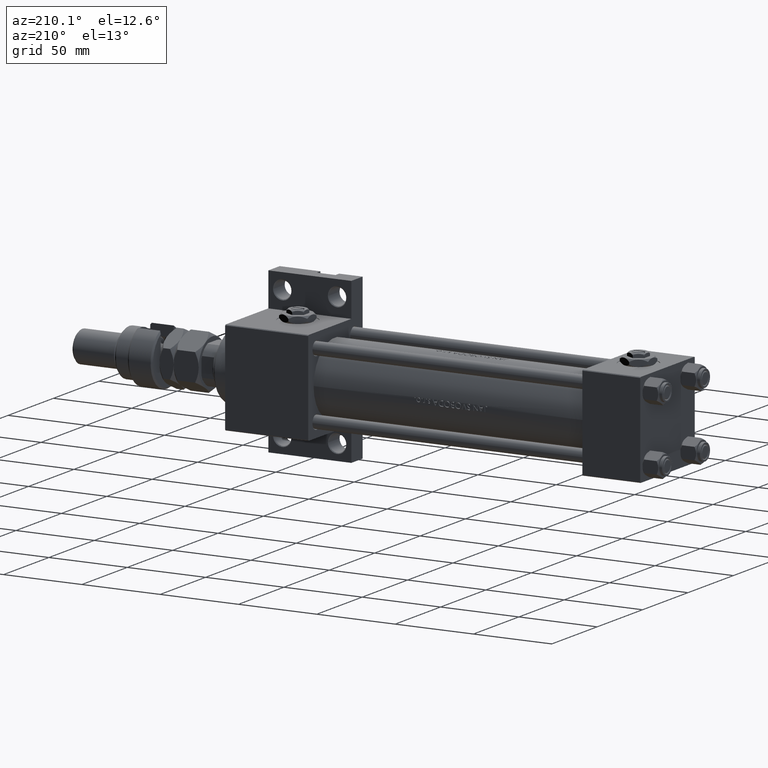
[diagram: clean part render]
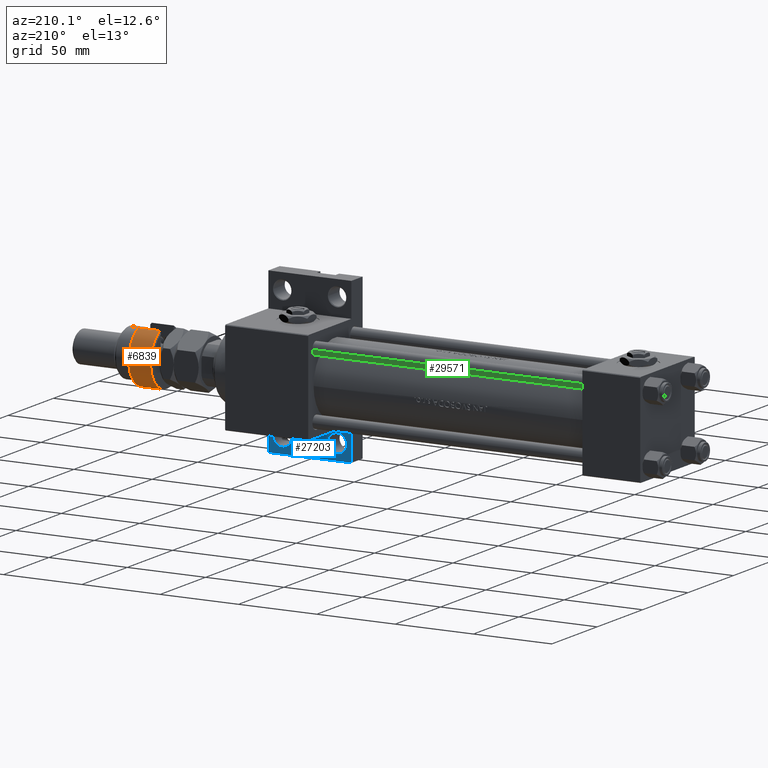
[diagram: same view with three faces highlighted in distinct colors, each labeled with its STEP entity id]
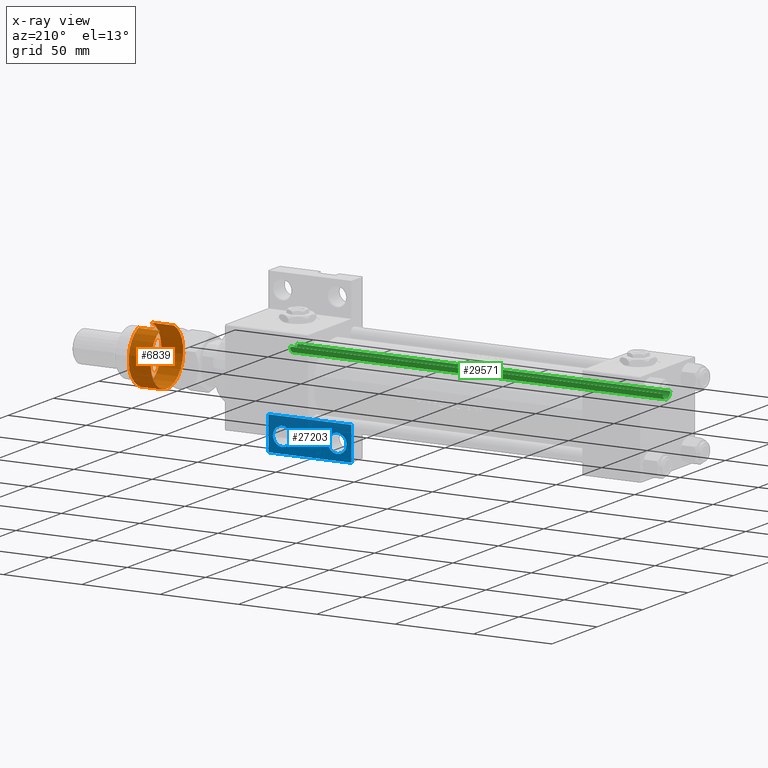
[diagram: x-ray of the same camera — body ghosted, the three highlighted faces saturated]
A machine part, auxiliary view with three faces highlighted in distinct colors.
The next image is the same camera in x-ray (body ghosted, the three faces saturated) — at least one of them is partly hidden behind the body in this view.
Their STEP definitions:

[orange] entity #6839 — the highlighted cylindrical surface (edge-blend (fillet) strip) has radius 18 mm, axis along (-1, -0, 0).
#1157 = CIRCLE ( 'NONE', #21053, 18.00000000000000000 ) ;
#3051 = DIRECTION ( 'NONE',  ( 0.000000000000000000, 0.000000000000000000, -1.000000000000000000 ) ) ;
#3459 = LINE ( 'NONE', #40029, #23033 ) ;
#5266 = CARTESIAN_POINT ( 'NONE',  ( -16.36306817195357155, -7.500000000000000000, 14.99999999999999645 ) ) ;
#5891 = ORIENTED_EDGE ( 'NONE', *, *, #37635, .T. ) ;
#6839 = ADVANCED_FACE ( 'NONE', ( #8698 ), #42278, .T. ) ;
#7726 = VERTEX_POINT ( 'NONE', #5266 ) ;
#8698 = FACE_OUTER_BOUND ( 'NONE', #39046, .T. ) ;
#9233 = DIRECTION ( 'NONE',  ( -0.000000000000000000, -0.000000000000000000, 1.000000000000000000 ) ) ;
#10088 = EDGE_CURVE ( 'NONE', #27938, #14609, #1157, .T. ) ;
#11339 = CARTESIAN_POINT ( 'NONE',  ( -16.36306817195357155, -7.500000000000000000, 1.000000000000011324 ) ) ;
#11461 = DIRECTION ( 'NONE',  ( 1.000000000000000000, 0.000000000000000000, 0.000000000000000000 ) ) ;
#13303 = CARTESIAN_POINT ( 'NONE',  ( 0.000000000000000000, 0.000000000000000000, 1.000000000000011324 ) ) ;
#14609 = VERTEX_POINT ( 'NONE', #16078 ) ;
#16078 = CARTESIAN_POINT ( 'NONE',  ( -16.36306817195357155, 7.500000000000000000, 1.000000000000011324 ) ) ;
#16765 = ORIENTED_EDGE ( 'NONE', *, *, #52792, .T. ) ;
#16827 = CARTESIAN_POINT ( 'NONE',  ( 0.000000000000000000, 0.000000000000000000, 16.00000000000000000 ) ) ;
#18905 = DIRECTION ( 'NONE',  ( -0.000000000000000000, -0.000000000000000000, 1.000000000000000000 ) ) ;
#19685 = VERTEX_POINT ( 'NONE', #11339 ) ;
#19758 = CARTESIAN_POINT ( 'NONE',  ( -16.36306817195357155, -7.500000000000000000, 17.50000000000000000 ) ) ;
#21053 = AXIS2_PLACEMENT_3D ( 'NONE', #13303, #9233, #42287 ) ;
#22360 = ORIENTED_EDGE ( 'NONE', *, *, #35872, .T. ) ;
#23033 = VECTOR ( 'NONE', #40837, 1000.000000000000000 ) ;
#26037 = DIRECTION ( 'NONE',  ( -0.000000000000000000, -0.000000000000000000, -1.000000000000000000 ) ) ;
#27938 = VERTEX_POINT ( 'NONE', #42233 ) ;
#30999 = CIRCLE ( 'NONE', #38816, 18.00000000000000000 ) ;
#31087 = CIRCLE ( 'NONE', #48411, 18.00000000000000000 ) ;
#33985 = AXIS2_PLACEMENT_3D ( 'NONE', #16827, #26037, #42546 ) ;
#34457 = VECTOR ( 'NONE', #49294, 1000.000000000000000 ) ;
#35872 = EDGE_CURVE ( 'NONE', #7726, #19685, #40333, .T. ) ;
#36261 = CARTESIAN_POINT ( 'NONE',  ( -16.36306817195357155, 7.500000000000000000, 14.99999999999999645 ) ) ;
#37635 = EDGE_CURVE ( 'NONE', #19685, #27938, #31087, .T. ) ;
#38816 = AXIS2_PLACEMENT_3D ( 'NONE', #44516, #3051, #11461 ) ;
#39046 = EDGE_LOOP ( 'NONE', ( #48858, #16765, #22360, #5891, #53205 ) ) ;
#39222 = CARTESIAN_POINT ( 'NONE',  ( 0.000000000000000000, 0.000000000000000000, 1.000000000000011324 ) ) ;
#40029 = CARTESIAN_POINT ( 'NONE',  ( -16.36306817195357155, 7.500000000000000000, 17.50000000000000000 ) ) ;
#40333 = LINE ( 'NONE', #19758, #34457 ) ;
#40837 = DIRECTION ( 'NONE',  ( -0.000000000000000000, -0.000000000000000000, -1.000000000000000000 ) ) ;
#42233 = CARTESIAN_POINT ( 'NONE',  ( 18.00000000000000000, 0.000000000000000000, 1.000000000000011324 ) ) ;
#42278 = CYLINDRICAL_SURFACE ( 'NONE', #33985, 18.00000000000000000 ) ;
#42287 = DIRECTION ( 'NONE',  ( 1.000000000000000000, 0.000000000000000000, 0.000000000000000000 ) ) ;
#42546 = DIRECTION ( 'NONE',  ( -1.000000000000000000, 0.000000000000000000, 0.000000000000000000 ) ) ;
#44315 = VERTEX_POINT ( 'NONE', #36261 ) ;
#44516 = CARTESIAN_POINT ( 'NONE',  ( 0.000000000000000000, 0.000000000000000000, 14.99999999999999645 ) ) ;
#47698 = EDGE_CURVE ( 'NONE', #44315, #14609, #3459, .T. ) ;
#48411 = AXIS2_PLACEMENT_3D ( 'NONE', #39222, #18905, #51976 ) ;
#48858 = ORIENTED_EDGE ( 'NONE', *, *, #47698, .F. ) ;
#49294 = DIRECTION ( 'NONE',  ( -0.000000000000000000, -0.000000000000000000, -1.000000000000000000 ) ) ;
#51976 = DIRECTION ( 'NONE',  ( 1.000000000000000000, 0.000000000000000000, 0.000000000000000000 ) ) ;
#52792 = EDGE_CURVE ( 'NONE', #44315, #7726, #30999, .T. ) ;
#53205 = ORIENTED_EDGE ( 'NONE', *, *, #10088, .T. ) ;

[blue] entity #27203 — the highlighted planar face has unit normal (0, 1, 0).
#1413 = VECTOR ( 'NONE', #19337, 1000.000000000000000 ) ;
#2195 = CARTESIAN_POINT ( 'NONE',  ( 265.0000000000000000, 51.49999999999997158, -17.49999999999999645 ) ) ;
#2373 = CIRCLE ( 'NONE', #34393, 5.999500000000102418 ) ;
#2494 = ORIENTED_EDGE ( 'NONE', *, *, #16909, .F. ) ;
#4442 = PLANE ( 'NONE',  #49443 ) ;
#4505 = ORIENTED_EDGE ( 'NONE', *, *, #41368, .F. ) ;
#4717 = VERTEX_POINT ( 'NONE', #25546 ) ;
#4845 = CIRCLE ( 'NONE', #42052, 5.999500000000102418 ) ;
#5246 = DIRECTION ( 'NONE',  ( 0.000000000000000000, 0.000000000000000000, 1.000000000000000000 ) ) ;
#6541 = CARTESIAN_POINT ( 'NONE',  ( 212.0000000000000000, 51.49999999999999289, -17.49999999999999645 ) ) ;
#6822 = ORIENTED_EDGE ( 'NONE', *, *, #23227, .T. ) ;
#8382 = CIRCLE ( 'NONE', #23083, 5.999500000000073996 ) ;
#8518 = FACE_BOUND ( 'NONE', #32674, .T. ) ;
#9313 = CARTESIAN_POINT ( 'NONE',  ( 0.000000000000000000, 0.000000000000000000, -17.49999999999999645 ) ) ;
#10265 = ORIENTED_EDGE ( 'NONE', *, *, #10449, .F. ) ;
#10449 = EDGE_CURVE ( 'NONE', #45768, #24702, #14587, .T. ) ;
#12326 = EDGE_LOOP ( 'NONE', ( #13437, #49103 ) ) ;
#13325 = VECTOR ( 'NONE', #30557, 1000.000000000000000 ) ;
#13437 = ORIENTED_EDGE ( 'NONE', *, *, #47378, .T. ) ;
#13736 = DIRECTION ( 'NONE',  ( -0.000000000000000000, -0.000000000000000000, -1.000000000000000000 ) ) ;
#14416 = DIRECTION ( 'NONE',  ( 1.000000000000000000, -3.927675794664467405E-16, 0.000000000000000000 ) ) ;
#14587 = LINE ( 'NONE', #34632, #13325 ) ;
#15272 = CARTESIAN_POINT ( 'NONE',  ( 212.0000000000000284, 30.00000000000000000, -17.49999999999999645 ) ) ;
#15612 = VERTEX_POINT ( 'NONE', #20735 ) ;
#16378 = VERTEX_POINT ( 'NONE', #48144 ) ;
#16385 = CARTESIAN_POINT ( 'NONE',  ( 220.9999999999999716, 41.50000000000000711, -17.49999999999999645 ) ) ;
#16635 = DIRECTION ( 'NONE',  ( 1.000000000000000000, 0.000000000000000000, 0.000000000000000000 ) ) ;
#16909 = EDGE_CURVE ( 'NONE', #24702, #15612, #31205, .T. ) ;
#19337 = DIRECTION ( 'NONE',  ( -1.000000000000000000, 5.236901059552626493E-16, -0.000000000000000000 ) ) ;
#19382 = ORIENTED_EDGE ( 'NONE', *, *, #24902, .F. ) ;
#19779 = DIRECTION ( 'NONE',  ( -0.000000000000000000, -0.000000000000000000, -1.000000000000000000 ) ) ;
#20226 = VERTEX_POINT ( 'NONE', #51591 ) ;
#20509 = CARTESIAN_POINT ( 'NONE',  ( 265.0000000000000000, 29.99999999999997158, -17.49999999999999645 ) ) ;
#20735 = CARTESIAN_POINT ( 'NONE',  ( 265.0000000000000000, 51.49999999999997158, -17.49999999999999645 ) ) ;
#22531 = LINE ( 'NONE', #2195, #25953 ) ;
#23083 = AXIS2_PLACEMENT_3D ( 'NONE', #34314, #13736, #40658 ) ;
#23227 = EDGE_CURVE ( 'NONE', #29212, #4717, #41446, .T. ) ;
#23844 = CARTESIAN_POINT ( 'NONE',  ( 256.0000000000000000, 41.50000000000000000, -17.49999999999999645 ) ) ;
#24024 = CARTESIAN_POINT ( 'NONE',  ( 256.0000000000000000, 41.50000000000000000, -17.49999999999999645 ) ) ;
#24215 = CARTESIAN_POINT ( 'NONE',  ( 212.0000000000000000, 51.49999999999999289, -17.49999999999999645 ) ) ;
#24702 = VERTEX_POINT ( 'NONE', #24215 ) ;
#24902 = EDGE_CURVE ( 'NONE', #15612, #44324, #22531, .T. ) ;
#25546 = CARTESIAN_POINT ( 'NONE',  ( 226.9995000000000402, 41.50000000000000711, -17.49999999999999645 ) ) ;
#25953 = VECTOR ( 'NONE', #52078, 1000.000000000000000 ) ;
#27203 = ADVANCED_FACE ( 'NONE', ( #46433, #8518, #41572 ), #4442, .T. ) ;
#27216 = CARTESIAN_POINT ( 'NONE',  ( 212.0000000000000000, 30.00000000000000000, -17.49999999999998224 ) ) ;
#28174 = DIRECTION ( 'NONE',  ( 1.000000000000000000, 0.000000000000000000, 0.000000000000000000 ) ) ;
#28883 = DIRECTION ( 'NONE',  ( 1.000000000000000000, 0.000000000000000000, 0.000000000000000000 ) ) ;
#29212 = VERTEX_POINT ( 'NONE', #44604 ) ;
#30557 = DIRECTION ( 'NONE',  ( -1.290957005378089519E-15, 1.000000000000000000, -0.000000000000000000 ) ) ;
#31205 = LINE ( 'NONE', #6541, #48029 ) ;
#32614 = DIRECTION ( 'NONE',  ( -0.000000000000000000, -0.000000000000000000, -1.000000000000000000 ) ) ;
#32674 = EDGE_LOOP ( 'NONE', ( #48112, #6822 ) ) ;
#34314 = CARTESIAN_POINT ( 'NONE',  ( 220.9999999999999716, 41.50000000000000711, -17.49999999999999645 ) ) ;
#34393 = AXIS2_PLACEMENT_3D ( 'NONE', #24024, #49481, #28883 ) ;
#34632 = CARTESIAN_POINT ( 'NONE',  ( 212.0000000000000000, 51.49999999999999289, -17.49999999999999645 ) ) ;
#37507 = DIRECTION ( 'NONE',  ( 1.000000000000000000, 0.000000000000000000, -0.000000000000000000 ) ) ;
#40658 = DIRECTION ( 'NONE',  ( 1.000000000000000000, 0.000000000000000000, 0.000000000000000000 ) ) ;
#41368 = EDGE_CURVE ( 'NONE', #44324, #45768, #52402, .T. ) ;
#41446 = CIRCLE ( 'NONE', #53581, 5.999500000000073996 ) ;
#41572 = FACE_OUTER_BOUND ( 'NONE', #42986, .T. ) ;
#42052 = AXIS2_PLACEMENT_3D ( 'NONE', #23844, #19779, #28174 ) ;
#42986 = EDGE_LOOP ( 'NONE', ( #10265, #4505, #19382, #2494 ) ) ;
#44324 = VERTEX_POINT ( 'NONE', #20509 ) ;
#44604 = CARTESIAN_POINT ( 'NONE',  ( 215.0004999999999029, 41.50000000000000711, -17.49999999999999645 ) ) ;
#45494 = EDGE_CURVE ( 'NONE', #4717, #29212, #8382, .T. ) ;
#45768 = VERTEX_POINT ( 'NONE', #27216 ) ;
#46433 = FACE_BOUND ( 'NONE', #12326, .T. ) ;
#47378 = EDGE_CURVE ( 'NONE', #16378, #20226, #4845, .T. ) ;
#48029 = VECTOR ( 'NONE', #14416, 1000.000000000000000 ) ;
#48112 = ORIENTED_EDGE ( 'NONE', *, *, #45494, .T. ) ;
#48144 = CARTESIAN_POINT ( 'NONE',  ( 261.9995000000001255, 41.50000000000000000, -17.49999999999999645 ) ) ;
#49103 = ORIENTED_EDGE ( 'NONE', *, *, #51143, .T. ) ;
#49443 = AXIS2_PLACEMENT_3D ( 'NONE', #9313, #5246, #37507 ) ;
#49481 = DIRECTION ( 'NONE',  ( -0.000000000000000000, -0.000000000000000000, -1.000000000000000000 ) ) ;
#51143 = EDGE_CURVE ( 'NONE', #20226, #16378, #2373, .T. ) ;
#51591 = CARTESIAN_POINT ( 'NONE',  ( 250.0004999999999029, 41.50000000000000000, -17.49999999999999645 ) ) ;
#52078 = DIRECTION ( 'NONE',  ( 0.000000000000000000, -1.000000000000000000, 0.000000000000000000 ) ) ;
#52402 = LINE ( 'NONE', #15272, #1413 ) ;
#53581 = AXIS2_PLACEMENT_3D ( 'NONE', #16385, #32614, #16635 ) ;

[green] entity #29571 — the highlighted cylindrical surface (edge-blend (fillet) strip) has radius 4 mm, axis along (1, -0, 0).
#819 = VERTEX_POINT ( 'NONE', #23738 ) ;
#1197 = VERTEX_POINT ( 'NONE', #22528 ) ;
#2698 = AXIS2_PLACEMENT_3D ( 'NONE', #12278, #33096, #12527 ) ;
#2899 = AXIS2_PLACEMENT_3D ( 'NONE', #32208, #19484, #52560 ) ;
#4260 = EDGE_CURVE ( 'NONE', #29365, #819, #41969, .T. ) ;
#6797 = CARTESIAN_POINT ( 'NONE',  ( 4.000000000000000000, 4.898587196589411843E-16, 239.0000000000000000 ) ) ;
#7599 = LINE ( 'NONE', #6797, #41631 ) ;
#7752 = CARTESIAN_POINT ( 'NONE',  ( 4.000000000000000000, 4.898587196589411843E-16, 238.5000000000001421 ) ) ;
#8434 = ORIENTED_EDGE ( 'NONE', *, *, #4260, .F. ) ;
#9190 = EDGE_CURVE ( 'NONE', #1197, #819, #37521, .T. ) ;
#12278 = CARTESIAN_POINT ( 'NONE',  ( 0.000000000000000000, 0.000000000000000000, 238.5000000000001421 ) ) ;
#12527 = DIRECTION ( 'NONE',  ( 1.000000000000000000, 0.000000000000000000, 0.000000000000000000 ) ) ;
#13063 = CIRCLE ( 'NONE', #2698, 4.000000000000000000 ) ;
#13519 = DIRECTION ( 'NONE',  ( -0.000000000000000000, -0.000000000000000000, -1.000000000000000000 ) ) ;
#14948 = CARTESIAN_POINT ( 'NONE',  ( -4.000000000000000000, 0.000000000000000000, 238.5000000000001421 ) ) ;
#16239 = ORIENTED_EDGE ( 'NONE', *, *, #28493, .T. ) ;
#16293 = CARTESIAN_POINT ( 'NONE',  ( 0.000000000000000000, 0.000000000000000000, 239.0000000000000000 ) ) ;
#16309 = EDGE_LOOP ( 'NONE', ( #29559, #16239, #26941, #8434 ) ) ;
#19484 = DIRECTION ( 'NONE',  ( -0.000000000000000000, -0.000000000000000000, 1.000000000000000000 ) ) ;
#21381 = CARTESIAN_POINT ( 'NONE',  ( -4.000000000000000000, 0.000000000000000000, 239.0000000000000000 ) ) ;
#22528 = CARTESIAN_POINT ( 'NONE',  ( 4.000000000000000000, 4.898587196589411843E-16, 0.5000000000001392220 ) ) ;
#23738 = CARTESIAN_POINT ( 'NONE',  ( -4.000000000000000000, 0.000000000000000000, 0.5000000000001392220 ) ) ;
#26941 = ORIENTED_EDGE ( 'NONE', *, *, #9190, .T. ) ;
#27533 = EDGE_CURVE ( 'NONE', #29365, #45617, #13063, .T. ) ;
#28493 = EDGE_CURVE ( 'NONE', #45617, #1197, #7599, .T. ) ;
#29365 = VERTEX_POINT ( 'NONE', #14948 ) ;
#29559 = ORIENTED_EDGE ( 'NONE', *, *, #27533, .T. ) ;
#29571 = ADVANCED_FACE ( 'NONE', ( #48809 ), #40935, .T. ) ;
#32208 = CARTESIAN_POINT ( 'NONE',  ( 0.000000000000000000, 0.000000000000000000, 0.5000000000001392220 ) ) ;
#33096 = DIRECTION ( 'NONE',  ( 0.000000000000000000, 0.000000000000000000, -1.000000000000000000 ) ) ;
#37521 = CIRCLE ( 'NONE', #2899, 4.000000000000000000 ) ;
#37888 = VECTOR ( 'NONE', #13519, 1000.000000000000000 ) ;
#40935 = CYLINDRICAL_SURFACE ( 'NONE', #52105, 4.000000000000000000 ) ;
#41631 = VECTOR ( 'NONE', #49339, 1000.000000000000000 ) ;
#41969 = LINE ( 'NONE', #21381, #37888 ) ;
#43062 = DIRECTION ( 'NONE',  ( -1.000000000000000000, 0.000000000000000000, 0.000000000000000000 ) ) ;
#45617 = VERTEX_POINT ( 'NONE', #7752 ) ;
#48809 = FACE_OUTER_BOUND ( 'NONE', #16309, .T. ) ;
#49339 = DIRECTION ( 'NONE',  ( -0.000000000000000000, -0.000000000000000000, -1.000000000000000000 ) ) ;
#52105 = AXIS2_PLACEMENT_3D ( 'NONE', #16293, #52342, #43062 ) ;
#52342 = DIRECTION ( 'NONE',  ( -0.000000000000000000, -0.000000000000000000, -1.000000000000000000 ) ) ;
#52560 = DIRECTION ( 'NONE',  ( 1.000000000000000000, 0.000000000000000000, 0.000000000000000000 ) ) ;